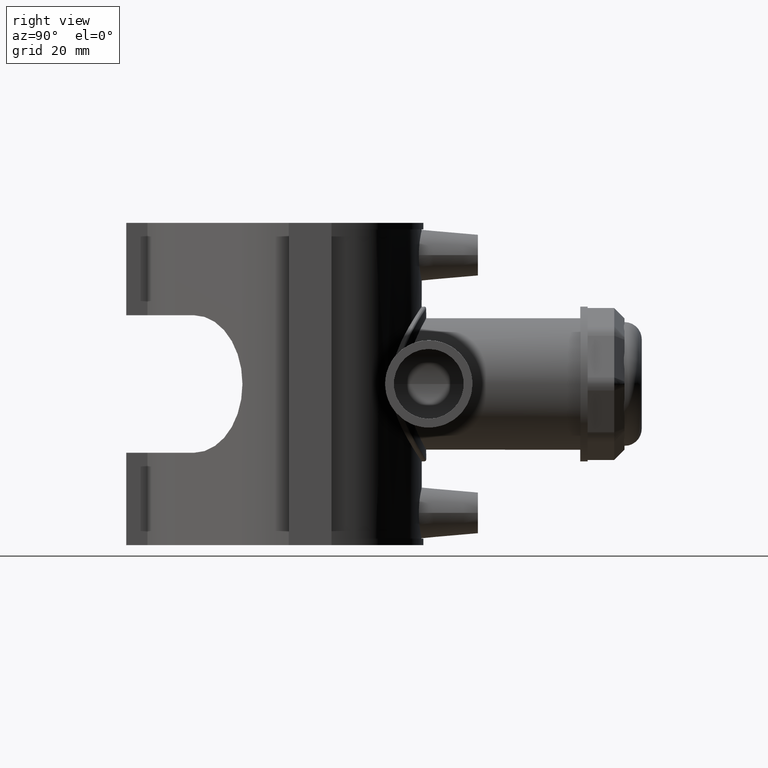
[diagram: clean part render]
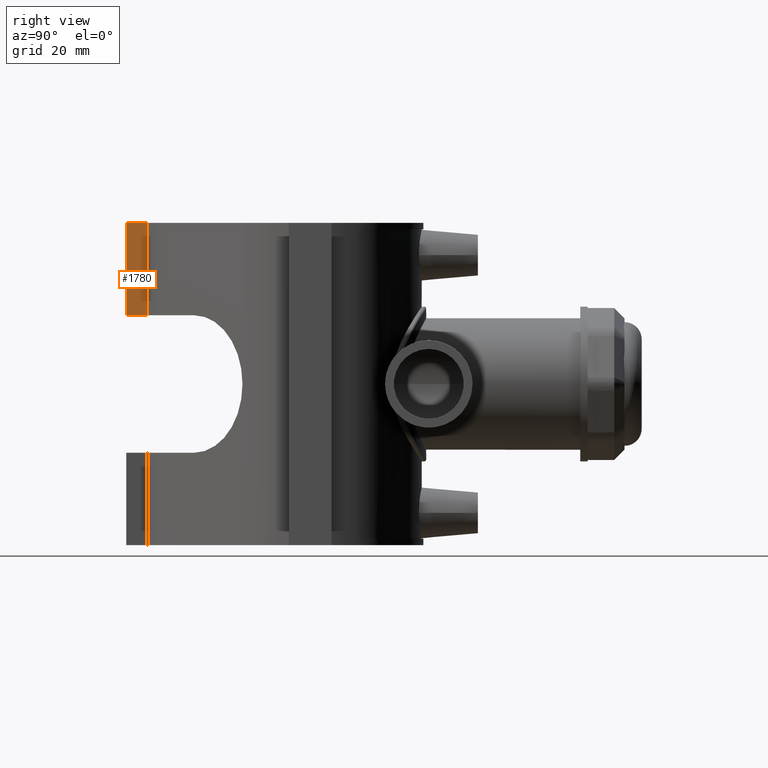
[diagram: same view with one face highlighted and labeled with its STEP entity id]
A machine part, right view. The second image highlights one B-rep face of the part: STEP entity #1780.
In plain terms, the highlighted planar face has unit normal (1, 0, 0).
Its self-contained STEP definition (entity closure, byte-faithful):
#115=LINE('',#3510,#259);
#136=LINE('',#3570,#280);
#146=LINE('',#3590,#290);
#147=LINE('',#3591,#291);
#259=VECTOR('',#2361,7.76729281260671);
#280=VECTOR('',#2418,33.8);
#290=VECTOR('',#2436,33.8);
#291=VECTOR('',#2437,7.76729281260671);
#497=FACE_OUTER_BOUND('',#630,.T.);
#630=EDGE_LOOP('',(#1551,#1552,#1553,#1554));
#842=VERTEX_POINT('',#3507);
#843=VERTEX_POINT('',#3509);
#864=VERTEX_POINT('',#3569);
#870=VERTEX_POINT('',#3589);
#1065=EDGE_CURVE('',#843,#842,#115,.T.);
#1095=EDGE_CURVE('',#864,#843,#136,.T.);
#1105=EDGE_CURVE('',#870,#842,#146,.T.);
#1106=EDGE_CURVE('',#864,#870,#147,.T.);
#1551=ORIENTED_EDGE('',*,*,#1065,.T.);
#1552=ORIENTED_EDGE('',*,*,#1105,.F.);
#1553=ORIENTED_EDGE('',*,*,#1106,.F.);
#1554=ORIENTED_EDGE('',*,*,#1095,.T.);
#1676=PLANE('',#1959);
#1780=ADVANCED_FACE('',(#497),#1676,.T.);
#1959=AXIS2_PLACEMENT_3D('',#3588,#2434,#2435);
#2361=DIRECTION('',(0.,1.,-1.55763140557486E-16));
#2418=DIRECTION('',(0.,0.,-1.));
#2434=DIRECTION('center_axis',(1.,0.,0.));
#2435=DIRECTION('ref_axis',(0.,-1.,0.));
#2436=DIRECTION('',(0.,0.,-1.));
#2437=DIRECTION('',(0.,1.,0.));
#3507=CARTESIAN_POINT('',(-21.0749478174158,-59.514629718263,25.2));
#3509=CARTESIAN_POINT('',(-21.0749478174158,-67.2819225308697,25.2));
#3510=CARTESIAN_POINT('',(-21.0749478174158,-85.7513698092304,25.2));
#3569=CARTESIAN_POINT('',(-21.0749478174158,-67.2819225308697,59.));
#3570=CARTESIAN_POINT('',(-21.0749478174158,-67.2819225308697,59.));
#3588=CARTESIAN_POINT('Origin',(-21.0749478174158,-59.514629718263,59.));
#3589=CARTESIAN_POINT('',(-21.0749478174158,-59.514629718263,59.));
#3590=CARTESIAN_POINT('',(-21.0749478174158,-59.514629718263,59.));
#3591=CARTESIAN_POINT('',(-21.0749478174158,-67.2819225308697,59.));